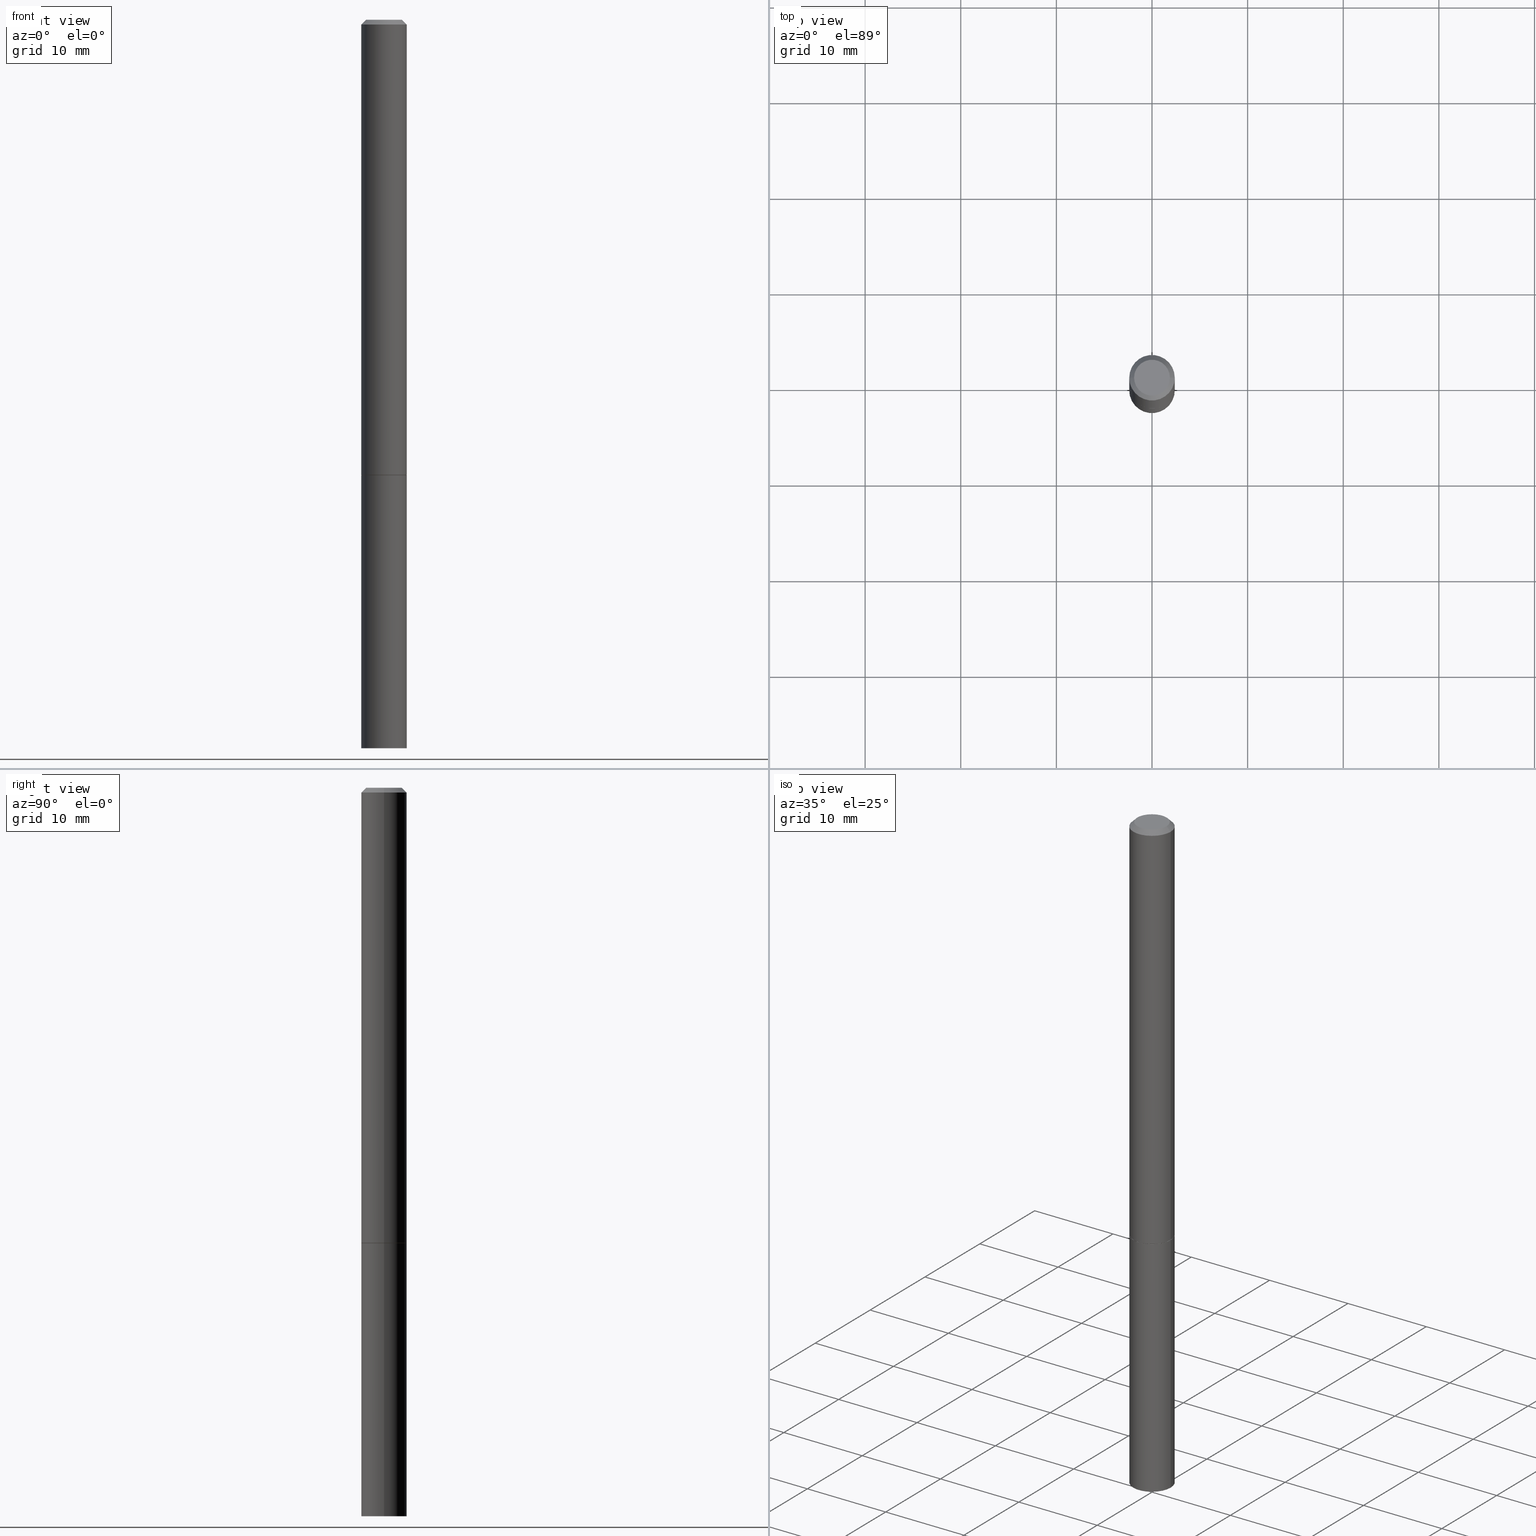
[diagram: canonical four-view strip — front | top / right | iso, engineering-drawing reading convention]
A machine part, canonical four-view strip (front | top / right | iso — engineering-drawing reading convention). The complete STEP part file that produces these views, byte-faithful:
ISO-10303-21;
HEADER;
FILE_DESCRIPTION (( 'STEP AP203' ),
    '1' );
FILE_NAME ('31881.STEP',
    '2023-03-21T20:35:15',
    ( '' ),
    ( '' ),
    'SwSTEP 2.0',
    'SolidWorks 2022',
    '' );
FILE_SCHEMA (( 'CONFIG_CONTROL_DESIGN' ));
ENDSEC;

DATA;
#1 = PERSON_AND_ORGANIZATION_ROLE ( 'creator' ) ;
#2 = DIRECTION ( 'NONE',  ( -2.445468806185136597E-29, 3.491481338843145583E-15, 1.000000000000000000 ) ) ;
#3 = APPROVAL ( #311, 'UNSPECIFIED' ) ;
#4 = VECTOR ( 'NONE', #274, 39.37007874015748143 ) ;
#5 = FACE_OUTER_BOUND ( 'NONE', #346, .T. ) ;
#6 = LOCAL_TIME ( 16, 35, 15.00000000000000000, #156 ) ;
#7 = DIRECTION ( 'NONE',  ( -1.000000000000000000, 6.982962677686266711E-15, 0.000000000000000000 ) ) ;
#8 = DIRECTION ( 'NONE',  ( -2.445468806185136597E-29, 3.491481338843145583E-15, 1.000000000000000000 ) ) ;
#9 = ORIENTED_EDGE ( 'NONE', *, *, #159, .T. ) ;
#10 = FACE_OUTER_BOUND ( 'NONE', #381, .T. ) ;
#11 = AXIS2_PLACEMENT_3D ( 'NONE', #93, #364, #158 ) ;
#12 = ORIENTED_EDGE ( 'NONE', *, *, #382, .F. ) ;
#13 = LOCAL_TIME ( 16, 35, 15.00000000000000000, #243 ) ;
#14 = CYLINDRICAL_SURFACE ( 'NONE', #64, 0.09374999999999988898 ) ;
#15 = EDGE_LOOP ( 'NONE', ( #318, #246, #219, #293 ) ) ;
#16 = LINE ( 'NONE', #71, #155 ) ;
#17 = CC_DESIGN_PERSON_AND_ORGANIZATION_ASSIGNMENT ( #53, #212, ( #27 ) ) ;
#18 = DIRECTION ( 'NONE',  ( 1.000000000000000000, 0.000000000000000000, 0.000000000000000000 ) ) ;
#19 = ORIENTED_EDGE ( 'NONE', *, *, #82, .F. ) ;
#20 = AXIS2_PLACEMENT_3D ( 'NONE', #92, #217, #337 ) ;
#21 = APPROVAL_DATE_TIME ( #306, #360 ) ;
#22 = CARTESIAN_POINT ( 'NONE',  ( 0.09375000000000001388, -6.546527510330875041E-16, 4.571415727308690506E-30 ) ) ;
#23 = COORDINATED_UNIVERSAL_TIME_OFFSET ( 5, 0, .BEHIND. ) ;
#24 = DIRECTION ( 'NONE',  ( 2.445468806185136597E-29, -3.491481338843145583E-15, -1.000000000000000000 ) ) ;
#25 = EDGE_CURVE ( 'NONE', #109, #358, #324, .T. ) ;
#26 = APPROVAL_ROLE ( '' ) ;
#27 = SECURITY_CLASSIFICATION ( '', '', #120 ) ;
#28 = CARTESIAN_POINT ( 'NONE',  ( 7.323523427394052547E-29, -1.045853236744335972E-14, -2.995086770692215516 ) ) ;
#29 = EDGE_CURVE ( 'NONE', #230, #170, #193, .T. ) ;
#30 = CIRCLE ( 'NONE', #148, 0.07374999999999981570 ) ;
#31 = DIRECTION ( 'NONE',  ( 1.000000000000000000, -6.982962677686265922E-15, 4.876176775795935793E-29 ) ) ;
#32 = LOCAL_TIME ( 16, 35, 15.00000000000000000, #87 ) ;
#33 = DIRECTION ( 'NONE',  ( -2.445468806185136597E-29, 3.491481338843145583E-15, 1.000000000000000000 ) ) ;
#34 = DIRECTION ( 'NONE',  ( 1.000000000000000000, -6.982962677686261189E-15, 0.000000000000000000 ) ) ;
#35 = ORIENTED_EDGE ( 'NONE', *, *, #157, .T. ) ;
#36 = DIRECTION ( 'NONE',  ( 2.445468806185136597E-29, -3.491481338843145583E-15, -1.000000000000000000 ) ) ;
#37 = EDGE_CURVE ( 'NONE', #373, #230, #103, .T. ) ;
#38 = CARTESIAN_POINT ( 'NONE',  ( 4.585254011597131119E-29, -6.546527510330898707E-15, -1.875000000000000000 ) ) ;
#39 = EDGE_LOOP ( 'NONE', ( #203, #19, #326, #49 ) ) ;
#40 = CIRCLE ( 'NONE', #225, 0.09375000000000001388 ) ;
#41 = DIRECTION ( 'NONE',  ( -2.445468806185136597E-29, 3.491481338843145583E-15, 1.000000000000000000 ) ) ;
#42 = DIRECTION ( 'NONE',  ( -2.445468806185136597E-29, 3.491481338843145583E-15, 1.000000000000000000 ) ) ;
#43 = ADVANCED_FACE ( 'NONE', ( #348 ), #388, .T. ) ;
#44 = DIRECTION ( 'NONE',  ( -2.445468806185136597E-29, 3.491481338843145583E-15, 1.000000000000000000 ) ) ;
#45 = ORIENTED_EDGE ( 'NONE', *, *, #382, .T. ) ;
#46 =( NAMED_UNIT ( * ) PLANE_ANGLE_UNIT ( ) SI_UNIT ( $, .RADIAN. ) );
#47 = AXIS2_PLACEMENT_3D ( 'NONE', #252, #24, #247 ) ;
#48 = AXIS2_PLACEMENT_3D ( 'NONE', #385, #33, #377 ) ;
#49 = ORIENTED_EDGE ( 'NONE', *, *, #140, .T. ) ;
#50 = CARTESIAN_POINT ( 'NONE',  ( 0.09374999999999988898, -6.546527510330866166E-16, 4.571415727308684201E-30 ) ) ;
#51 = EDGE_CURVE ( 'NONE', #65, #170, #374, .T. ) ;
#52 = ORIENTED_EDGE ( 'NONE', *, *, #235, .T. ) ;
#53 = PERSON_AND_ORGANIZATION ( #333, #208 ) ;
#54 = DIRECTION ( 'NONE',  ( 2.438088387897960049E-29, -3.491481338843145188E-15, -1.000000000000000000 ) ) ;
#55 = ORIENTED_EDGE ( 'NONE', *, *, #127, .F. ) ;
#56 = DIRECTION ( 'NONE',  ( -1.000000000000000000, 6.982962677686267499E-15, 0.000000000000000000 ) ) ;
#57 = AXIS2_PLACEMENT_3D ( 'NONE', #367, #258, #319 ) ;
#58 = DIRECTION ( 'NONE',  ( 1.000000000000000000, -6.982962677686265922E-15, 4.876176775795935793E-29 ) ) ;
#59 = EDGE_CURVE ( 'NONE', #358, #302, #242, .T. ) ;
#60 = APPLICATION_CONTEXT ( 'configuration controlled 3d designs of mechanical parts and assemblies' ) ;
#61 = PERSON_AND_ORGANIZATION ( #333, #208 ) ;
#62 = CIRCLE ( 'NONE', #181, 0.09375000000000001388 ) ;
#63 = DIRECTION ( 'NONE',  ( 1.000000000000000000, -6.982962677686261189E-15, 0.000000000000000000 ) ) ;
#64 = AXIS2_PLACEMENT_3D ( 'NONE', #264, #41, #207 ) ;
#65 = VERTEX_POINT ( 'NONE', #378 ) ;
#66 = EDGE_CURVE ( 'NONE', #230, #116, #214, .T. ) ;
#67 = CARTESIAN_POINT ( 'NONE',  ( 5.149934974793608091E-16, 0.07374999999999981570, -2.574967487396813413E-16 ) ) ;
#68 = ORIENTED_EDGE ( 'NONE', *, *, #229, .T. ) ;
#69 = SHAPE_DEFINITION_REPRESENTATION ( #206, #101 ) ;
#70 = ORIENTED_EDGE ( 'NONE', *, *, #66, .T. ) ;
#71 = CARTESIAN_POINT ( 'NONE',  ( -1.242799355434530621E-18, -1.045728956808785091E-14, -2.995086770692215516 ) ) ;
#72 = CIRCLE ( 'NONE', #119, 0.07374999999999981570 ) ;
#73 = VECTOR ( 'NONE', #111, 39.37007874015748143 ) ;
#74 = CC_DESIGN_DATE_AND_TIME_ASSIGNMENT ( #338, #309, ( #27 ) ) ;
#75 = ADVANCED_FACE ( 'NONE', ( #271 ), #332, .F. ) ;
#76 = ORIENTED_EDGE ( 'NONE', *, *, #59, .T. ) ;
#77 = CARTESIAN_POINT ( 'NONE',  ( 0.000000000000000000, 0.000000000000000000, 0.000000000000000000 ) ) ;
#78 = FACE_OUTER_BOUND ( 'NONE', #359, .T. ) ;
#79 = CLOSED_SHELL ( 'NONE', ( #43, #356, #137, #260, #287, #323, #113, #222 ) ) ;
#80 = CONICAL_SURFACE ( 'NONE', #167, 0.09374999999999976408, 0.7853981633974469467 ) ;
#81 = CARTESIAN_POINT ( 'NONE',  ( 0.09374999999999984734, -1.111761570382051902E-14, -3.000000000000000444 ) ) ;
#82 = EDGE_CURVE ( 'NONE', #357, #88, #30, .T. ) ;
#83 = DIRECTION ( 'NONE',  ( 1.000000000000000000, -6.982962677686261189E-15, 0.000000000000000000 ) ) ;
#84 = CALENDAR_DATE ( 2023, 21, 3 ) ;
#85 = ORIENTED_EDGE ( 'NONE', *, *, #255, .T. ) ;
#86 = DIRECTION ( 'NONE',  ( 2.445468806185136597E-29, -3.491481338843145583E-15, -1.000000000000000000 ) ) ;
#87 = COORDINATED_UNIVERSAL_TIME_OFFSET ( 5, 0, .BEHIND. ) ;
#88 = VERTEX_POINT ( 'NONE', #184 ) ;
#89 = CC_DESIGN_PERSON_AND_ORGANIZATION_ASSIGNMENT ( #216, #177, ( #273 ) ) ;
#90 = LOCAL_TIME ( 16, 35, 15.00000000000000000, #383 ) ;
#91 = ORIENTED_EDGE ( 'NONE', *, *, #82, .T. ) ;
#92 = CARTESIAN_POINT ( 'NONE',  ( 4.890937612370275786E-31, -6.982962677686296539E-17, -0.02000000000000001429 ) ) ;
#93 = CARTESIAN_POINT ( 'NONE',  ( 4.585254011597131119E-29, -6.546527510330898707E-15, -1.875000000000000000 ) ) ;
#94 = CIRCLE ( 'NONE', #182, 0.09375000000000001388 ) ;
#95 = LINE ( 'NONE', #251, #198 ) ;
#96 = DIRECTION ( 'NONE',  ( 1.000000000000000000, -6.982962677686265922E-15, 4.876176775795935793E-29 ) ) ;
#97 = APPROVAL_DATE_TIME ( #163, #3 ) ;
#98 = DIRECTION ( 'NONE',  ( 1.000000000000000000, -6.982962677686261189E-15, 0.000000000000000000 ) ) ;
#99 = ORIENTED_EDGE ( 'NONE', *, *, #308, .F. ) ;
#100 = EDGE_CURVE ( 'NONE', #263, #115, #95, .T. ) ;
#101 = ADVANCED_BREP_SHAPE_REPRESENTATION ( '31881', ( #202, #335, #365 ), #269 ) ;
#102 = CARTESIAN_POINT ( 'NONE',  ( 4.582808542790945516E-29, -6.543036028992054911E-15, -1.874000000000000110 ) ) ;
#103 = LINE ( 'NONE', #228, #173 ) ;
#104 = ORIENTED_EDGE ( 'NONE', *, *, #308, .T. ) ;
#105 = DIRECTION ( 'NONE',  ( 1.000000000000000000, -6.982962677686265133E-15, 4.876176775795935793E-29 ) ) ;
#106 = CC_DESIGN_DATE_AND_TIME_ASSIGNMENT ( #153, #121, ( #304 ) ) ;
#107 = ORIENTED_EDGE ( 'NONE', *, *, #51, .F. ) ;
#108 = CARTESIAN_POINT ( 'NONE',  ( 0.09274999999999999911, -7.194197298686300986E-15, -1.875000000000000000 ) ) ;
#109 = VERTEX_POINT ( 'NONE', #28 ) ;
#110 = CARTESIAN_POINT ( 'NONE',  ( 0.000000000000000000, 0.000000000000000000, 0.000000000000000000 ) ) ;
#111 = DIRECTION ( 'NONE',  ( 0.7071067811865465735, -7.319954787623252890E-15, -0.7071067811865484609 ) ) ;
#112 = CARTESIAN_POINT ( 'NONE',  ( 4.582808542790945516E-29, -6.543036028992054911E-15, -1.874000000000000110 ) ) ;
#113 = ADVANCED_FACE ( 'NONE', ( #5 ), #361, .F. ) ;
#114 = APPROVAL_PERSON_ORGANIZATION ( #145, #360, #336 ) ;
#115 = VERTEX_POINT ( 'NONE', #387 ) ;
#116 = VERTEX_POINT ( 'NONE', #125 ) ;
#117 = EDGE_LOOP ( 'NONE', ( #85, #172, #175, #55 ) ) ;
#118 = FACE_OUTER_BOUND ( 'NONE', #351, .T. ) ;
#119 = AXIS2_PLACEMENT_3D ( 'NONE', #190, #161, #31 ) ;
#120 = SECURITY_CLASSIFICATION_LEVEL ( 'unclassified' ) ;
#121 = DATE_TIME_ROLE ( 'creation_date' ) ;
#122 = ADVANCED_FACE ( 'NONE', ( #341 ), #366, .T. ) ;
#123 = PERSON_AND_ORGANIZATION ( #333, #208 ) ;
#124 = DIRECTION ( 'NONE',  ( 0.7071067811865232589, -2.468850131082003836E-15, 0.7071067811865715536 ) ) ;
#125 = CARTESIAN_POINT ( 'NONE',  ( 0.09375000000000001388, -7.197688780025142415E-15, -1.874000000000000110 ) ) ;
#126 = DIRECTION ( 'NONE',  ( -1.000000000000000000, 6.982962677686265922E-15, -4.876176775795935793E-29 ) ) ;
#127 = EDGE_CURVE ( 'NONE', #328, #116, #223, .T. ) ;
#128 = CARTESIAN_POINT ( 'NONE',  ( 1.036026907256533381E-27, -1.479171847981329535E-13, -42.36516551084969961 ) ) ;
#129 = ORIENTED_EDGE ( 'NONE', *, *, #187, .T. ) ;
#130 = VECTOR ( 'NONE', #124, 39.37007874015748854 ) ;
#131 = DIMENSIONAL_EXPONENTS ( 1.000000000000000000, 0.000000000000000000, 0.000000000000000000, 0.000000000000000000, 0.000000000000000000, 0.000000000000000000, 0.000000000000000000 ) ;
#132 = VECTOR ( 'NONE', #266, 39.37007874015748143 ) ;
#133 = PLANE ( 'NONE',  #340 ) ;
#134 = ORIENTED_EDGE ( 'NONE', *, *, #66, .F. ) ;
#135 = CARTESIAN_POINT ( 'NONE',  ( 0.09374999999999976408, -7.130013140679424100E-16, -0.02000000000000001429 ) ) ;
#136 = EDGE_LOOP ( 'NONE', ( #165, #70, #45, #141 ) ) ;
#137 = ADVANCED_FACE ( 'NONE', ( #118 ), #349, .T. ) ;
#138 = CARTESIAN_POINT ( 'NONE',  ( -0.09274999999999999911, -5.882200668565183389E-15, -1.875000000000000000 ) ) ;
#139 = DIRECTION ( 'NONE',  ( -2.445468806185136597E-29, 3.491481338843145583E-15, 1.000000000000000000 ) ) ;
#140 = EDGE_CURVE ( 'NONE', #170, #65, #280, .T. ) ;
#141 = ORIENTED_EDGE ( 'NONE', *, *, #140, .F. ) ;
#142 = DIRECTION ( 'NONE',  ( -2.445468806185136597E-29, 3.491481338843145583E-15, 1.000000000000000000 ) ) ;
#143 = DIRECTION ( 'NONE',  ( 1.000000000000000000, -6.982962677686267499E-15, 0.000000000000000000 ) ) ;
#144 = DIRECTION ( 'NONE',  ( -2.445468806185136597E-29, 3.491481338843145583E-15, 1.000000000000000000 ) ) ;
#145 = PERSON_AND_ORGANIZATION ( #333, #208 ) ;
#146 = ORIENTED_EDGE ( 'NONE', *, *, #276, .F. ) ;
#147 = DIRECTION ( 'NONE',  ( 1.000000000000000000, -6.982962677686261189E-15, 0.000000000000000000 ) ) ;
#148 = AXIS2_PLACEMENT_3D ( 'NONE', #384, #245, #58 ) ;
#149 = PRODUCT_DEFINITION_FORMATION_WITH_SPECIFIED_SOURCE ( 'ANY', '', #273, .NOT_KNOWN. ) ;
#150 = PERSON_AND_ORGANIZATION ( #333, #208 ) ;
#151 = EDGE_CURVE ( 'NONE', #357, #170, #194, .T. ) ;
#152 = PERSON_AND_ORGANIZATION ( #333, #208 ) ;
#153 = DATE_AND_TIME ( #185, #90 ) ;
#154 = PERSON_AND_ORGANIZATION ( #333, #208 ) ;
#155 = VECTOR ( 'NONE', #205, 39.37007874015748854 ) ;
#156 = COORDINATED_UNIVERSAL_TIME_OFFSET ( 5, 0, .BEHIND. ) ;
#157 = EDGE_CURVE ( 'NONE', #88, #357, #72, .T. ) ;
#158 = DIRECTION ( 'NONE',  ( 1.000000000000000000, -6.982962677686265922E-15, 4.876176775795935793E-29 ) ) ;
#159 = EDGE_CURVE ( 'NONE', #302, #115, #380, .T. ) ;
#160 = DIRECTION ( 'NONE',  ( -2.445468806185136597E-29, 3.491481338843145583E-15, 1.000000000000000000 ) ) ;
#161 = DIRECTION ( 'NONE',  ( -2.445468806185136597E-29, 3.491481338843145583E-15, 1.000000000000000000 ) ) ;
#162 = DIRECTION ( 'NONE',  ( 0.9986295347545742773, -7.033825938272001856E-15, -0.05233595624293820026 ) ) ;
#163 = DATE_AND_TIME ( #275, #6 ) ;
#164 = CARTESIAN_POINT ( 'NONE',  ( -0.09374999999999976408, 5.848231242562229240E-16, -0.02000000000000001429 ) ) ;
#165 = ORIENTED_EDGE ( 'NONE', *, *, #29, .F. ) ;
#166 = AXIS2_PLACEMENT_3D ( 'NONE', #180, #54, #307 ) ;
#167 = AXIS2_PLACEMENT_3D ( 'NONE', #179, #86, #56 ) ;
#168 = ORIENTED_EDGE ( 'NONE', *, *, #255, .F. ) ;
#169 =( CONVERSION_BASED_UNIT ( 'INCH', #327 ) LENGTH_UNIT ( ) NAMED_UNIT ( #131 ) );
#170 = VERTEX_POINT ( 'NONE', #164 ) ;
#171 = MECHANICAL_CONTEXT ( 'NONE', #278, 'mechanical' ) ;
#172 = ORIENTED_EDGE ( 'NONE', *, *, #37, .T. ) ;
#173 = VECTOR ( 'NONE', #232, 39.37007874015748854 ) ;
#174 = DIRECTION ( 'NONE',  ( -2.445468806185136597E-29, 3.491481338843145583E-15, 1.000000000000000000 ) ) ;
#175 = ORIENTED_EDGE ( 'NONE', *, *, #187, .F. ) ;
#176 = FACE_OUTER_BOUND ( 'NONE', #136, .T. ) ;
#177 = PERSON_AND_ORGANIZATION_ROLE ( 'design_owner' ) ;
#178 = DIRECTION ( 'NONE',  ( -2.445468806185136597E-29, 3.491481338843145583E-15, 1.000000000000000000 ) ) ;
#179 = CARTESIAN_POINT ( 'NONE',  ( 4.890937612370275786E-31, -6.982962677686296539E-17, -0.02000000000000001429 ) ) ;
#180 = CARTESIAN_POINT ( 'NONE',  ( 6.546527510331333567E-16, 0.09374999999999346356, -1.875000000000000444 ) ) ;
#181 = AXIS2_PLACEMENT_3D ( 'NONE', #102, #160, #34 ) ;
#182 = AXIS2_PLACEMENT_3D ( 'NONE', #345, #174, #83 ) ;
#183 = CARTESIAN_POINT ( 'NONE',  ( -0.09374999999999984734, -9.819791265496351216E-15, -3.000000000000000444 ) ) ;
#184 = CARTESIAN_POINT ( 'NONE',  ( 0.07374999999999981570, -6.094815207017958239E-16, 3.931526600461595946E-30 ) ) ;
#185 = CALENDAR_DATE ( 2023, 21, 3 ) ;
#186 = APPROVAL_ROLE ( '' ) ;
#187 = EDGE_CURVE ( 'NONE', #116, #230, #62, .T. ) ;
#188 = AXIS2_PLACEMENT_3D ( 'NONE', #286, #8, #63 ) ;
#189 = AXIS2_PLACEMENT_3D ( 'NONE', #77, #44, #329 ) ;
#190 = CARTESIAN_POINT ( 'NONE',  ( 0.000000000000000000, 0.000000000000000000, 0.000000000000000000 ) ) ;
#191 = AXIS2_PLACEMENT_3D ( 'NONE', #211, #139, #143 ) ;
#192 = FACE_OUTER_BOUND ( 'NONE', #297, .T. ) ;
#193 = LINE ( 'NONE', #259, #321 ) ;
#194 = LINE ( 'NONE', #342, #299 ) ;
#195 = ORIENTED_EDGE ( 'NONE', *, *, #157, .F. ) ;
#196 = ORIENTED_EDGE ( 'NONE', *, *, #390, .F. ) ;
#197 =( LENGTH_UNIT ( ) NAMED_UNIT ( * ) SI_UNIT ( $, .METRE. ) );
#198 = VECTOR ( 'NONE', #282, 39.37007874015748143 ) ;
#199 = CIRCLE ( 'NONE', #322, 0.09274999999999999911 ) ;
#200 = ORIENTED_EDGE ( 'NONE', *, *, #51, .T. ) ;
#201 = DIRECTION ( 'NONE',  ( 0.000000000000000000, 0.000000000000000000, 1.000000000000000000 ) ) ;
#202 = MANIFOLD_SOLID_BREP ( 'Body-Move/Copy2[1]', #343 ) ;
#203 = ORIENTED_EDGE ( 'NONE', *, *, #331, .F. ) ;
#204 = ADVANCED_FACE ( 'NONE', ( #192 ), #330, .F. ) ;
#205 = DIRECTION ( 'NONE',  ( -0.9986295347545742773, 6.790662755453662155E-15, -0.05233595624293820026 ) ) ;
#206 = PRODUCT_DEFINITION_SHAPE ( 'NONE', 'NONE',  #304 ) ;
#207 = DIRECTION ( 'NONE',  ( 1.000000000000000000, -6.982962677686265133E-15, 4.876176775795935793E-29 ) ) ;
#208 = ORGANIZATION ( 'UNSPECIFIED', 'UNSPECIFIED', '' ) ;
#209 = CYLINDRICAL_SURFACE ( 'NONE', #189, 0.09375000000000001388 ) ;
#210 = FACE_OUTER_BOUND ( 'NONE', #39, .T. ) ;
#211 = CARTESIAN_POINT ( 'NONE',  ( 4.890937612370275786E-31, -6.982962677686296539E-17, -0.02000000000000001429 ) ) ;
#212 = PERSON_AND_ORGANIZATION_ROLE ( 'classification_officer' ) ;
#213 = ORIENTED_EDGE ( 'NONE', *, *, #29, .T. ) ;
#214 = CIRCLE ( 'NONE', #253, 0.09375000000000001388 ) ;
#215 = CC_DESIGN_APPROVAL ( #316, ( #149 ) ) ;
#216 = PERSON_AND_ORGANIZATION ( #333, #208 ) ;
#217 = DIRECTION ( 'NONE',  ( -2.445468806185136597E-29, 3.491481338843145583E-15, 1.000000000000000000 ) ) ;
#218 = ADVANCED_FACE ( 'NONE', ( #289 ), #291, .F. ) ;
#219 = ORIENTED_EDGE ( 'NONE', *, *, #159, .F. ) ;
#220 = AXIS2_PLACEMENT_3D ( 'NONE', #233, #354, #236 ) ;
#221 = CC_DESIGN_PERSON_AND_ORGANIZATION_ASSIGNMENT ( #123, #362, ( #149 ) ) ;
#222 = ADVANCED_FACE ( 'NONE', ( #10 ), #133, .F. ) ;
#223 = LINE ( 'NONE', #310, #130 ) ;
#224 = EDGE_LOOP ( 'NONE', ( #386, #104, #261, #134 ) ) ;
#225 = AXIS2_PLACEMENT_3D ( 'NONE', #256, #317, #98 ) ;
#226 = AXIS2_PLACEMENT_3D ( 'NONE', #352, #142, #105 ) ;
#227 = CARTESIAN_POINT ( 'NONE',  ( -0.09375000000000001388, -2.640299013109360447E-15, -1.874000000000000110 ) ) ;
#228 = CARTESIAN_POINT ( 'NONE',  ( -0.09274999999999999911, -5.887499122913405791E-15, -1.875000000000000000 ) ) ;
#229 = EDGE_CURVE ( 'NONE', #263, #358, #40, .T. ) ;
#230 = VERTEX_POINT ( 'NONE', #227 ) ;
#231 = FACE_OUTER_BOUND ( 'NONE', #371, .T. ) ;
#232 = DIRECTION ( 'NONE',  ( -0.7071067811865232589, 7.493145998870265808E-15, 0.7071067811865715536 ) ) ;
#233 = CARTESIAN_POINT ( 'NONE',  ( 4.585254011597131119E-29, -6.546527510330898707E-15, -1.875000000000000000 ) ) ;
#234 = CC_DESIGN_APPROVAL ( #3, ( #27 ) ) ;
#235 = EDGE_CURVE ( 'NONE', #115, #302, #94, .T. ) ;
#236 = DIRECTION ( 'NONE',  ( 1.000000000000000000, -6.982962677686273021E-15, 0.000000000000000000 ) ) ;
#237 = UNCERTAINTY_MEASURE_WITH_UNIT (LENGTH_MEASURE( 1.000000000000000082E-05 ), #169, 'distance_accuracy_value', 'NONE');
#238 = DIRECTION ( 'NONE',  ( -2.445468806185136597E-29, 3.491481338843145583E-15, 1.000000000000000000 ) ) ;
#239 =( NAMED_UNIT ( * ) SI_UNIT ( $, .STERADIAN. ) SOLID_ANGLE_UNIT ( ) );
#240 = VECTOR ( 'NONE', #162, 39.37007874015748854 ) ;
#241 = CC_DESIGN_APPROVAL ( #360, ( #304 ) ) ;
#242 = LINE ( 'NONE', #22, #4 ) ;
#243 = COORDINATED_UNIVERSAL_TIME_OFFSET ( 5, 0, .BEHIND. ) ;
#244 = ORIENTED_EDGE ( 'NONE', *, *, #390, .T. ) ;
#245 = DIRECTION ( 'NONE',  ( -2.445468806185136597E-29, 3.491481338843145583E-15, 1.000000000000000000 ) ) ;
#246 = ORIENTED_EDGE ( 'NONE', *, *, #100, .T. ) ;
#247 = DIRECTION ( 'NONE',  ( -1.000000000000000000, 6.982962677686267499E-15, 0.000000000000000000 ) ) ;
#248 = APPROVAL_PERSON_ORGANIZATION ( #61, #3, #26 ) ;
#249 = CALENDAR_DATE ( 2023, 21, 3 ) ;
#250 = APPROVAL_STATUS ( 'not_yet_approved' ) ;
#251 = CARTESIAN_POINT ( 'NONE',  ( -0.09375000000000001388, 6.661338147750940229E-16, -4.611501647113973995E-30 ) ) ;
#252 = CARTESIAN_POINT ( 'NONE',  ( 4.890937612370275786E-31, -6.982962677686296539E-17, -0.02000000000000001429 ) ) ;
#253 = AXIS2_PLACEMENT_3D ( 'NONE', #112, #178, #147 ) ;
#254 = APPROVAL_PERSON_ORGANIZATION ( #154, #316, #186 ) ;
#255 = EDGE_CURVE ( 'NONE', #328, #373, #370, .T. ) ;
#256 = CARTESIAN_POINT ( 'NONE',  ( 7.336406418555409790E-29, -1.047444401652943635E-14, -3.000000000000000444 ) ) ;
#257 = CARTESIAN_POINT ( 'NONE',  ( 1.242799355581018393E-18, -1.045728956808785091E-14, -2.995086770692215516 ) ) ;
#258 = DIRECTION ( 'NONE',  ( 2.445468806185136597E-29, -3.491481338843145583E-15, -1.000000000000000000 ) ) ;
#259 = CARTESIAN_POINT ( 'NONE',  ( -0.09374999999999988898, 6.661338147750931354E-16, -4.611501647113968390E-30 ) ) ;
#260 = ADVANCED_FACE ( 'NONE', ( #210 ), #80, .T. ) ;
#261 = ORIENTED_EDGE ( 'NONE', *, *, #127, .T. ) ;
#262 = CYLINDRICAL_SURFACE ( 'NONE', #226, 0.09374999999999988898 ) ;
#263 = VERTEX_POINT ( 'NONE', #183 ) ;
#264 = CARTESIAN_POINT ( 'NONE',  ( 0.000000000000000000, 0.000000000000000000, 0.000000000000000000 ) ) ;
#265 = EDGE_LOOP ( 'NONE', ( #9, #52 ) ) ;
#266 = DIRECTION ( 'NONE',  ( -2.445468806185136877E-29, 3.491481338843145188E-15, 1.000000000000000000 ) ) ;
#267 = DIRECTION ( 'NONE',  ( 1.000000000000000000, -6.982962677686273021E-15, 0.000000000000000000 ) ) ;
#268 = APPROVAL_STATUS ( 'not_yet_approved' ) ;
#269 =( GEOMETRIC_REPRESENTATION_CONTEXT ( 3 ) GLOBAL_UNCERTAINTY_ASSIGNED_CONTEXT ( ( #237 ) ) GLOBAL_UNIT_ASSIGNED_CONTEXT ( ( #169, #46, #239 ) ) REPRESENTATION_CONTEXT ( 'NONE', 'WORKASPACE' ) );
#270 = ORIENTED_EDGE ( 'NONE', *, *, #229, .F. ) ;
#271 = FACE_OUTER_BOUND ( 'NONE', #265, .T. ) ;
#272 = PERSON_AND_ORGANIZATION_ROLE ( 'creator' ) ;
#273 = PRODUCT ( '31881', '31881', '', ( #171 ) ) ;
#274 = DIRECTION ( 'NONE',  ( -2.445468806185136877E-29, 3.491481338843145188E-15, 1.000000000000000000 ) ) ;
#275 = CALENDAR_DATE ( 2023, 21, 3 ) ;
#276 = EDGE_CURVE ( 'NONE', #358, #263, #313, .T. ) ;
#277 = ORIENTED_EDGE ( 'NONE', *, *, #151, .F. ) ;
#278 = APPLICATION_CONTEXT ( 'configuration controlled 3d designs of mechanical parts and assemblies' ) ;
#279 = DATE_AND_TIME ( #283, #350 ) ;
#280 = CIRCLE ( 'NONE', #20, 0.09374999999999976408 ) ;
#281 = AXIS2_PLACEMENT_3D ( 'NONE', #301, #144, #267 ) ;
#282 = DIRECTION ( 'NONE',  ( -2.445468806185136877E-29, 3.491481338843145188E-15, 1.000000000000000000 ) ) ;
#283 = CALENDAR_DATE ( 2023, 21, 3 ) ;
#284 = CARTESIAN_POINT ( 'NONE',  ( 0.000000000000000000, 0.000000000000000000, 0.000000000000000000 ) ) ;
#285 = DIRECTION ( 'NONE',  ( 2.438088387897960049E-29, -3.491481338843145188E-15, -1.000000000000000000 ) ) ;
#286 = CARTESIAN_POINT ( 'NONE',  ( 4.585254011597131119E-29, -6.546527510330898707E-15, -1.875000000000000000 ) ) ;
#287 = ADVANCED_FACE ( 'NONE', ( #176 ), #14, .T. ) ;
#288 = ORIENTED_EDGE ( 'NONE', *, *, #235, .F. ) ;
#289 = FACE_OUTER_BOUND ( 'NONE', #320, .T. ) ;
#290 = ORIENTED_EDGE ( 'NONE', *, *, #100, .F. ) ;
#291 = CONICAL_SURFACE ( 'NONE', #375, 751.2258538476485228, 1.518436449235072372 ) ;
#292 = FACE_OUTER_BOUND ( 'NONE', #224, .T. ) ;
#293 = ORIENTED_EDGE ( 'NONE', *, *, #59, .F. ) ;
#294 = CC_DESIGN_PERSON_AND_ORGANIZATION_ASSIGNMENT ( #152, #1, ( #149 ) ) ;
#295 = DIRECTION ( 'NONE',  ( 1.000000000000000000, -6.982962677686273021E-15, 0.000000000000000000 ) ) ;
#296 = CARTESIAN_POINT ( 'NONE',  ( -0.07374999999999981570, 5.499083108677918666E-16, -3.723527850031184862E-30 ) ) ;
#297 = EDGE_LOOP ( 'NONE', ( #196, #368, #270 ) ) ;
#298 = CARTESIAN_POINT ( 'NONE',  ( 0.09375000000000001388, -7.201180261363985422E-15, -1.875000000000000000 ) ) ;
#299 = VECTOR ( 'NONE', #314, 39.37007874015748143 ) ;
#300 = CONICAL_SURFACE ( 'NONE', #220, 0.09274999999999999911, 0.7853981633974141952 ) ;
#301 = CARTESIAN_POINT ( 'NONE',  ( 4.585254011597131119E-29, -6.546527510330898707E-15, -1.875000000000000000 ) ) ;
#302 = VERTEX_POINT ( 'NONE', #298 ) ;
#303 = DIRECTION ( 'NONE',  ( 1.000000000000000000, -6.982962677686273021E-15, 0.000000000000000000 ) ) ;
#304 = PRODUCT_DEFINITION ( 'UNKNOWN', '', #149, #339 ) ;
#305 = APPLICATION_PROTOCOL_DEFINITION ( 'international standard', 'config_control_design', 1994, #60 ) ;
#306 = DATE_AND_TIME ( #84, #13 ) ;
#307 = DIRECTION ( 'NONE',  ( -1.000000000000000000, 6.982962677686265922E-15, -4.876176775795935793E-29 ) ) ;
#308 = EDGE_CURVE ( 'NONE', #373, #328, #199, .T. ) ;
#309 = DATE_TIME_ROLE ( 'classification_date' ) ;
#310 = CARTESIAN_POINT ( 'NONE',  ( 0.09274999999999999911, -7.194197298686300986E-15, -1.875000000000000000 ) ) ;
#311 = APPROVAL_STATUS ( 'not_yet_approved' ) ;
#312 = AXIS2_PLACEMENT_3D ( 'NONE', #284, #2, #96 ) ;
#313 = CIRCLE ( 'NONE', #48, 0.09375000000000001388 ) ;
#314 = DIRECTION ( 'NONE',  ( -0.7071067811865465735, 2.468850131082246805E-15, -0.7071067811865484609 ) ) ;
#315 = CC_DESIGN_SECURITY_CLASSIFICATION ( #27, ( #149 ) ) ;
#316 = APPROVAL ( #250, 'UNSPECIFIED' ) ;
#317 = DIRECTION ( 'NONE',  ( -2.445468806185136597E-29, 3.491481338843145583E-15, 1.000000000000000000 ) ) ;
#318 = ORIENTED_EDGE ( 'NONE', *, *, #276, .T. ) ;
#319 = DIRECTION ( 'NONE',  ( -1.000000000000000000, 6.982962677686266711E-15, 0.000000000000000000 ) ) ;
#320 = EDGE_LOOP ( 'NONE', ( #344, #244, #146 ) ) ;
#321 = VECTOR ( 'NONE', #369, 39.37007874015748143 ) ;
#322 = AXIS2_PLACEMENT_3D ( 'NONE', #355, #238, #303 ) ;
#323 = ADVANCED_FACE ( 'NONE', ( #292 ), #300, .T. ) ;
#324 = LINE ( 'NONE', #257, #240 ) ;
#325 = APPLICATION_PROTOCOL_DEFINITION ( 'international standard', 'config_control_design', 1994, #278 ) ;
#326 = ORIENTED_EDGE ( 'NONE', *, *, #151, .T. ) ;
#327 = LENGTH_MEASURE_WITH_UNIT ( LENGTH_MEASURE( 0.02539999999999999897 ), #197 );
#328 = VERTEX_POINT ( 'NONE', #108 ) ;
#329 = DIRECTION ( 'NONE',  ( 1.000000000000000000, -6.982962677686265922E-15, 4.876176775795935793E-29 ) ) ;
#330 = CONICAL_SURFACE ( 'NONE', #57, 751.2258538476485228, 1.518436449235072372 ) ;
#331 = EDGE_CURVE ( 'NONE', #88, #65, #372, .T. ) ;
#332 = PLANE ( 'NONE',  #166 ) ;
#333 = PERSON ( 'UNSPECIFIED', 'UNSPECIFIED', 'UNSPECIFIED', ('UNSPECIFIED'), ('UNSPECIFIED'), ('UNSPECIFIED') ) ;
#334 = PRODUCT_RELATED_PRODUCT_CATEGORY ( 'detail', '', ( #273 ) ) ;
#335 = MANIFOLD_SOLID_BREP ( 'Body-Move/Copy2[2]', #79 ) ;
#336 = APPROVAL_ROLE ( '' ) ;
#337 = DIRECTION ( 'NONE',  ( 1.000000000000000000, -6.982962677686267499E-15, 0.000000000000000000 ) ) ;
#338 = DATE_AND_TIME ( #249, #32 ) ;
#339 = DESIGN_CONTEXT ( 'detailed design', #60, 'design' ) ;
#340 = AXIS2_PLACEMENT_3D ( 'NONE', #67, #285, #126 ) ;
#341 = FACE_OUTER_BOUND ( 'NONE', #15, .T. ) ;
#342 = CARTESIAN_POINT ( 'NONE',  ( -0.09374999999999976408, 5.848231242562229240E-16, -0.02000000000000001429 ) ) ;
#343 = CLOSED_SHELL ( 'NONE', ( #122, #204, #218, #376, #75 ) ) ;
#344 = ORIENTED_EDGE ( 'NONE', *, *, #25, .F. ) ;
#345 = CARTESIAN_POINT ( 'NONE',  ( 4.585254011597131119E-29, -6.546527510330898707E-15, -1.875000000000000000 ) ) ;
#346 = EDGE_LOOP ( 'NONE', ( #168, #99 ) ) ;
#347 = LINE ( 'NONE', #50, #132 ) ;
#348 = FACE_OUTER_BOUND ( 'NONE', #117, .T. ) ;
#349 = CONICAL_SURFACE ( 'NONE', #47, 0.09374999999999976408, 0.7853981633974469467 ) ;
#350 = LOCAL_TIME ( 16, 35, 15.00000000000000000, #23 ) ;
#351 = EDGE_LOOP ( 'NONE', ( #195, #379, #200, #277 ) ) ;
#352 = CARTESIAN_POINT ( 'NONE',  ( 0.000000000000000000, 0.000000000000000000, 0.000000000000000000 ) ) ;
#353 = CC_DESIGN_PERSON_AND_ORGANIZATION_ASSIGNMENT ( #150, #272, ( #304 ) ) ;
#354 = DIRECTION ( 'NONE',  ( -2.445468806185136597E-29, 3.491481338843145583E-15, 1.000000000000000000 ) ) ;
#355 = CARTESIAN_POINT ( 'NONE',  ( 4.585254011597131119E-29, -6.546527510330898707E-15, -1.875000000000000000 ) ) ;
#356 = ADVANCED_FACE ( 'NONE', ( #231 ), #262, .T. ) ;
#357 = VERTEX_POINT ( 'NONE', #296 ) ;
#358 = VERTEX_POINT ( 'NONE', #81 ) ;
#359 = EDGE_LOOP ( 'NONE', ( #290, #68, #76, #288 ) ) ;
#360 = APPROVAL ( #268, 'UNSPECIFIED' ) ;
#361 = PLANE ( 'NONE',  #11 ) ;
#362 = PERSON_AND_ORGANIZATION_ROLE ( 'design_supplier' ) ;
#363 = AXIS2_PLACEMENT_3D ( 'NONE', #38, #42, #295 ) ;
#364 = DIRECTION ( 'NONE',  ( -2.438088387897960049E-29, 3.491481338843145188E-15, 1.000000000000000000 ) ) ;
#365 = AXIS2_PLACEMENT_3D ( 'NONE', #110, #201, #18 ) ;
#366 = CYLINDRICAL_SURFACE ( 'NONE', #312, 0.09375000000000001388 ) ;
#367 = CARTESIAN_POINT ( 'NONE',  ( 1.036026907256533381E-27, -1.479171847981329535E-13, -42.36516551084969961 ) ) ;
#368 = ORIENTED_EDGE ( 'NONE', *, *, #25, .T. ) ;
#369 = DIRECTION ( 'NONE',  ( -2.445468806185136877E-29, 3.491481338843145188E-15, 1.000000000000000000 ) ) ;
#370 = CIRCLE ( 'NONE', #281, 0.09274999999999999911 ) ;
#371 = EDGE_LOOP ( 'NONE', ( #129, #213, #107, #12 ) ) ;
#372 = LINE ( 'NONE', #135, #73 ) ;
#373 = VERTEX_POINT ( 'NONE', #138 ) ;
#374 = CIRCLE ( 'NONE', #191, 0.09374999999999976408 ) ;
#375 = AXIS2_PLACEMENT_3D ( 'NONE', #128, #36, #7 ) ;
#376 = ADVANCED_FACE ( 'NONE', ( #78 ), #209, .T. ) ;
#377 = DIRECTION ( 'NONE',  ( 1.000000000000000000, -6.982962677686261189E-15, 0.000000000000000000 ) ) ;
#378 = CARTESIAN_POINT ( 'NONE',  ( 0.09374999999999976408, -7.130013140679424100E-16, -0.02000000000000001429 ) ) ;
#379 = ORIENTED_EDGE ( 'NONE', *, *, #331, .T. ) ;
#380 = CIRCLE ( 'NONE', #188, 0.09375000000000001388 ) ;
#381 = EDGE_LOOP ( 'NONE', ( #91, #35 ) ) ;
#382 = EDGE_CURVE ( 'NONE', #116, #65, #347, .T. ) ;
#383 = COORDINATED_UNIVERSAL_TIME_OFFSET ( 5, 0, .BEHIND. ) ;
#384 = CARTESIAN_POINT ( 'NONE',  ( 0.000000000000000000, 0.000000000000000000, 0.000000000000000000 ) ) ;
#385 = CARTESIAN_POINT ( 'NONE',  ( 7.336406418555409790E-29, -1.047444401652943635E-14, -3.000000000000000444 ) ) ;
#386 = ORIENTED_EDGE ( 'NONE', *, *, #37, .F. ) ;
#387 = CARTESIAN_POINT ( 'NONE',  ( -0.09375000000000001388, -7.844351948655072817E-15, -1.875000000000000000 ) ) ;
#388 = CONICAL_SURFACE ( 'NONE', #363, 0.09274999999999999911, 0.7853981633974141952 ) ;
#389 = APPROVAL_DATE_TIME ( #279, #316 ) ;
#390 = EDGE_CURVE ( 'NONE', #109, #263, #16, .T. ) ;
ENDSEC;
END-ISO-10303-21;
